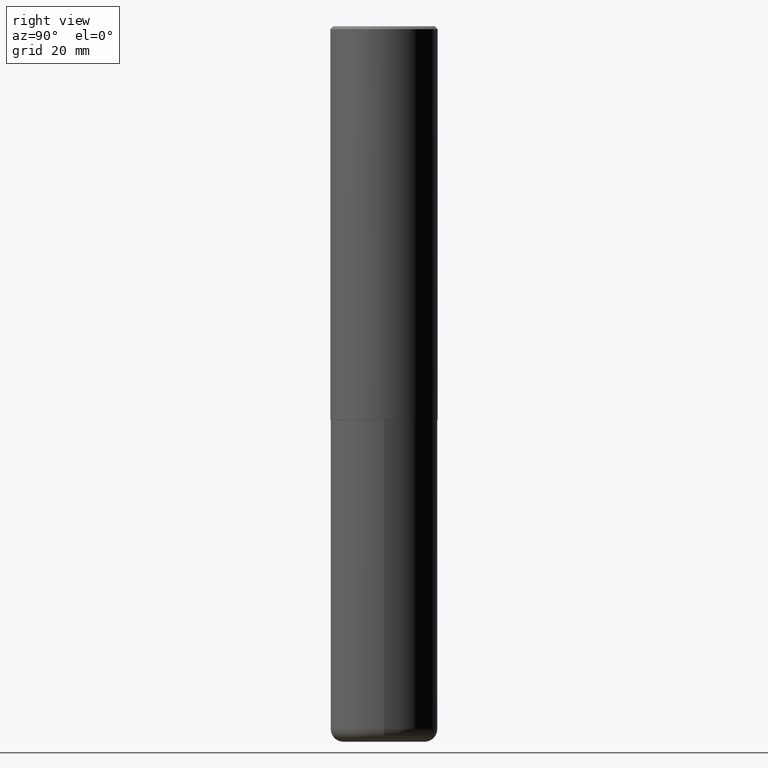
[diagram: clean part render]
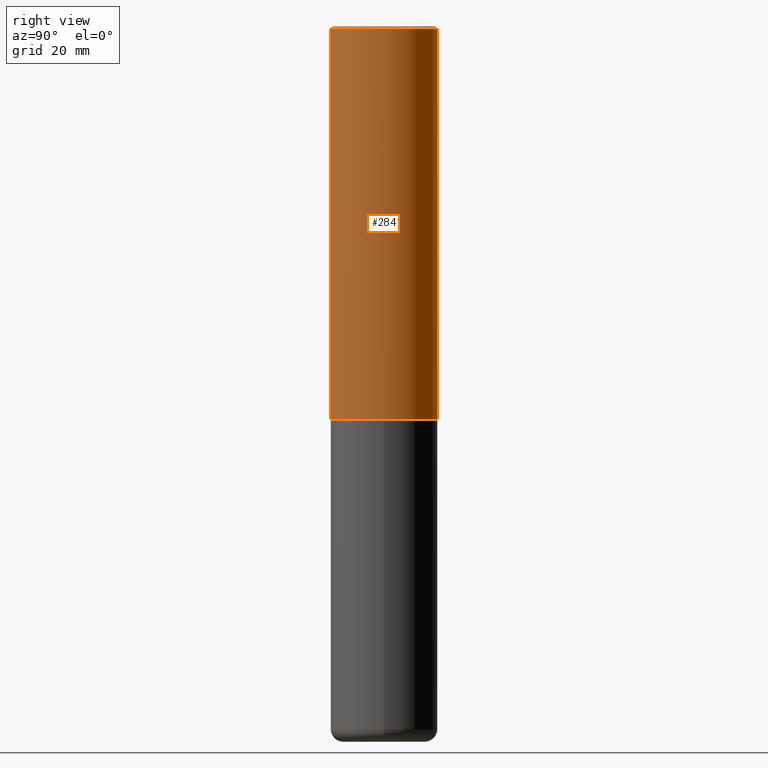
[diagram: same view with one face highlighted and labeled with its STEP entity id]
A machine part, right view. The second image highlights one B-rep face of the part: STEP entity #284.
In plain terms, the highlighted cylindrical surface (partial cylindrical patch) has radius 9.525 mm, axis along (-0, 0, 1).
Its self-contained STEP definition (entity closure, byte-faithful):
#10 = DIRECTION ( 'NONE',  ( -2.446040391741596606E-29, 3.490662795793665557E-15, 1.000000000000000000 ) ) ;
#40 = CARTESIAN_POINT ( 'NONE',  ( 2.664535259100376880E-15, 0.3750000000000002220, -1.308998548422625521E-15 ) ) ;
#58 = ORIENTED_EDGE ( 'NONE', *, *, #62, .F. ) ;
#62 = EDGE_CURVE ( 'NONE', #416, #353, #383, .T. ) ;
#68 = AXIS2_PLACEMENT_3D ( 'NONE', #263, #242, #171 ) ;
#69 = ORIENTED_EDGE ( 'NONE', *, *, #307, .T. ) ;
#77 = FACE_OUTER_BOUND ( 'NONE', #413, .T. ) ;
#82 = DIRECTION ( 'NONE',  ( -6.982962677686265922E-15, -1.000000000000000000, 3.494488891895536035E-15 ) ) ;
#87 = CARTESIAN_POINT ( 'NONE',  ( -2.572686749164323547E-15, -0.3750000000000001110, -0.01999999999999877570 ) ) ;
#89 = CARTESIAN_POINT ( 'NONE',  ( 2.664535259100411196E-15, 0.3749999999999907296, -2.749000000000000998 ) ) ;
#97 = ORIENTED_EDGE ( 'NONE', *, *, #155, .T. ) ;
#117 = VERTEX_POINT ( 'NONE', #89 ) ;
#138 = CARTESIAN_POINT ( 'NONE',  ( 2.618611004132350411E-15, 0.3749999999999999445, -0.02000000000000139513 ) ) ;
#155 = EDGE_CURVE ( 'NONE', #117, #353, #205, .T. ) ;
#169 = DIRECTION ( 'NONE',  ( -6.982962677686266711E-15, -1.000000000000000000, 3.490662795793665951E-15 ) ) ;
#171 = DIRECTION ( 'NONE',  ( -6.982962677686265922E-15, -1.000000000000000000, 2.913971193241877611E-15 ) ) ;
#181 = DIRECTION ( 'NONE',  ( -2.446040391741596606E-29, 3.490662795793665557E-15, 1.000000000000000000 ) ) ;
#205 = LINE ( 'NONE', #40, #281 ) ;
#207 = DIRECTION ( 'NONE',  ( -2.446040391741596606E-29, 3.490662795793665557E-15, 1.000000000000000000 ) ) ;
#208 = CIRCLE ( 'NONE', #68, 0.3750000000000003886 ) ;
#210 = EDGE_CURVE ( 'NONE', #259, #416, #418, .T. ) ;
#233 = DIRECTION ( 'NONE',  ( -2.446040391741596606E-29, 3.490662795793665557E-15, 1.000000000000000000 ) ) ;
#236 = CARTESIAN_POINT ( 'NONE',  ( 0.000000000000000000, 0.000000000000000000, 0.000000000000000000 ) ) ;
#242 = DIRECTION ( 'NONE',  ( -2.446040391741596606E-29, 3.490662795793665557E-15, 1.000000000000000000 ) ) ;
#244 = AXIS2_PLACEMENT_3D ( 'NONE', #372, #181, #82 ) ;
#259 = VERTEX_POINT ( 'NONE', #368 ) ;
#263 = CARTESIAN_POINT ( 'NONE',  ( 6.724165036897648492E-29, -9.595832025636787455E-15, -2.749000000000000110 ) ) ;
#268 = CYLINDRICAL_SURFACE ( 'NONE', #298, 0.3750000000000002220 ) ;
#281 = VECTOR ( 'NONE', #207, 39.37007874015748143 ) ;
#284 = ADVANCED_FACE ( 'NONE', ( #77 ), #268, .T. ) ;
#289 = ORIENTED_EDGE ( 'NONE', *, *, #210, .F. ) ;
#291 = CARTESIAN_POINT ( 'NONE',  ( -2.618611004132351594E-15, -0.3750000000000002220, 1.308998548422625521E-15 ) ) ;
#298 = AXIS2_PLACEMENT_3D ( 'NONE', #236, #10, #169 ) ;
#307 = EDGE_CURVE ( 'NONE', #259, #117, #208, .T. ) ;
#353 = VERTEX_POINT ( 'NONE', #138 ) ;
#368 = CARTESIAN_POINT ( 'NONE',  ( -2.618611004132284935E-15, -0.3750000000000099920, -2.748999999999999222 ) ) ;
#372 = CARTESIAN_POINT ( 'NONE',  ( 4.892080783483214581E-31, -6.981325591587361238E-17, -0.02000000000000008715 ) ) ;
#381 = VECTOR ( 'NONE', #233, 39.37007874015748143 ) ;
#383 = CIRCLE ( 'NONE', #244, 0.3750000000000000555 ) ;
#413 = EDGE_LOOP ( 'NONE', ( #69, #97, #58, #289 ) ) ;
#416 = VERTEX_POINT ( 'NONE', #87 ) ;
#418 = LINE ( 'NONE', #291, #381 ) ;